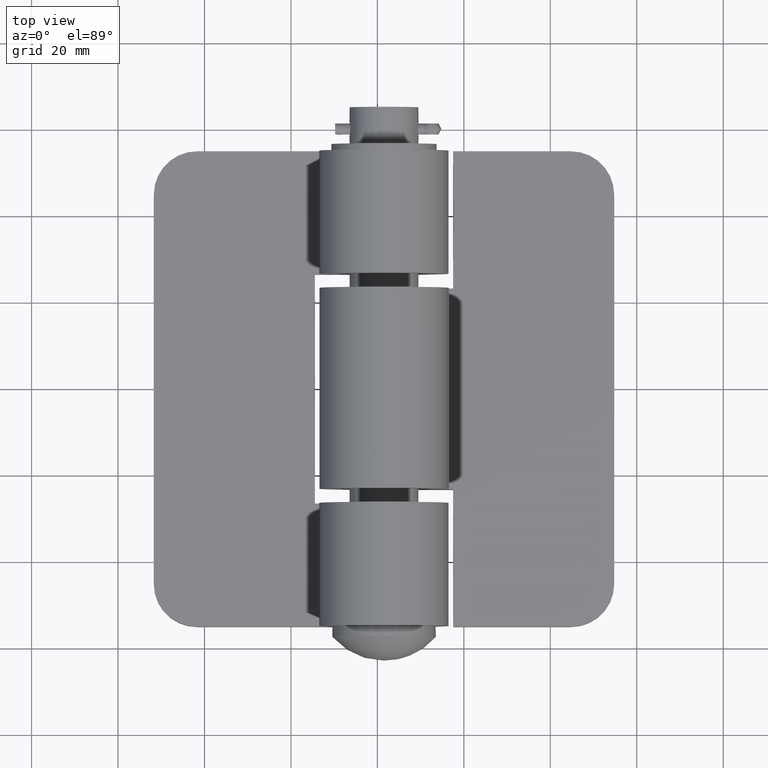
[diagram: clean part render]
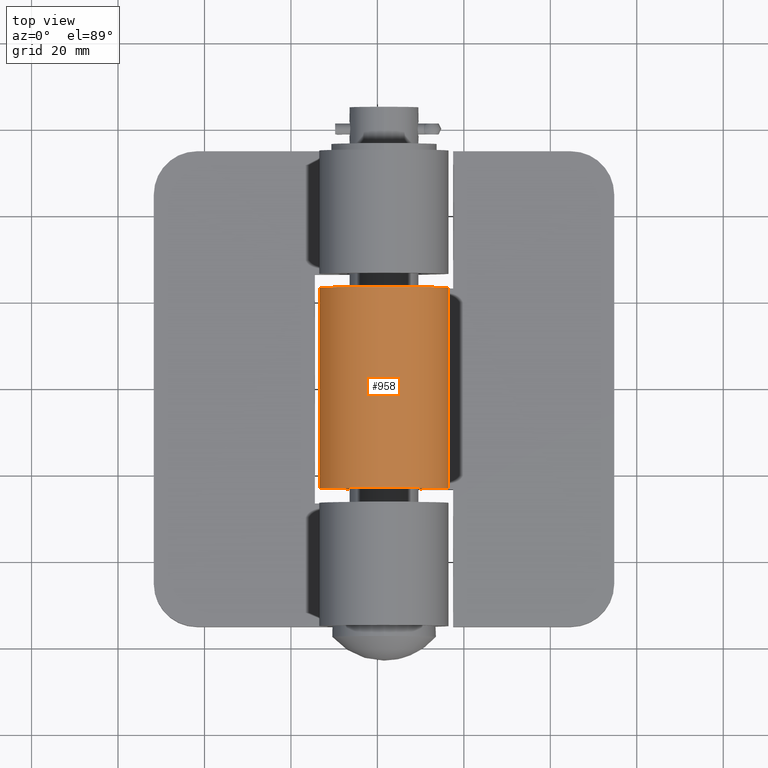
[diagram: same view with one face highlighted and labeled with its STEP entity id]
A machine part, top view. The second image highlights one B-rep face of the part: STEP entity #958.
In plain terms, the highlighted cylindrical surface (partial cylindrical patch) has radius 15 mm, axis along (0, 1, 0).
Its self-contained STEP definition (entity closure, byte-faithful):
#130=FACE_OUTER_BOUND('',#196,.T.);
#196=EDGE_LOOP('',(#869,#870,#871,#872));
#257=LINE('',#1713,#334);
#275=LINE('',#1759,#352);
#334=VECTOR('',#1316,46.5);
#352=VECTOR('',#1362,46.5);
#401=CIRCLE('',#1063,15.);
#403=CIRCLE('',#1067,15.);
#479=VERTEX_POINT('',#1710);
#480=VERTEX_POINT('',#1712);
#491=VERTEX_POINT('',#1742);
#493=VERTEX_POINT('',#1750);
#599=EDGE_CURVE('',#480,#479,#257,.T.);
#614=EDGE_CURVE('',#491,#480,#401,.T.);
#618=EDGE_CURVE('',#479,#493,#403,.T.);
#623=EDGE_CURVE('',#493,#491,#275,.T.);
#869=ORIENTED_EDGE('',*,*,#614,.T.);
#870=ORIENTED_EDGE('',*,*,#599,.T.);
#871=ORIENTED_EDGE('',*,*,#618,.T.);
#872=ORIENTED_EDGE('',*,*,#623,.T.);
#904=CYLINDRICAL_SURFACE('',#1070,15.);
#958=ADVANCED_FACE('',(#130),#904,.T.);
#1063=AXIS2_PLACEMENT_3D('',#1743,#1341,#1342);
#1067=AXIS2_PLACEMENT_3D('',#1751,#1351,#1352);
#1070=AXIS2_PLACEMENT_3D('',#1758,#1360,#1361);
#1316=DIRECTION('',(0.,0.,-1.));
#1341=DIRECTION('center_axis',(2.86509167645202E-16,1.59044537342946E-32,
-1.));
#1342=DIRECTION('ref_axis',(2.03307067601102E-32,-1.,0.));
#1351=DIRECTION('center_axis',(0.,0.,1.));
#1352=DIRECTION('ref_axis',(2.03307067601102E-32,-1.,0.));
#1360=DIRECTION('center_axis',(0.,0.,1.));
#1361=DIRECTION('ref_axis',(2.03307067601102E-32,-1.,0.));
#1362=DIRECTION('',(0.,0.,1.));
#1710=CARTESIAN_POINT('',(0.,0.,-23.25));
#1712=CARTESIAN_POINT('',(0.,0.,23.25));
#1713=CARTESIAN_POINT('',(0.,0.,0.));
#1742=CARTESIAN_POINT('',(-13.5946168055498,8.66072607388952,23.25));
#1743=CARTESIAN_POINT('Origin',(-3.04960601401653E-31,15.,23.25));
#1750=CARTESIAN_POINT('',(-13.5946168055498,8.66072607388952,-23.25));
#1751=CARTESIAN_POINT('Origin',(-3.04960601401653E-31,15.,-23.25));
#1758=CARTESIAN_POINT('Origin',(-3.04960601401653E-31,15.,0.));
#1759=CARTESIAN_POINT('',(-13.5946168055498,8.66072607388952,0.));